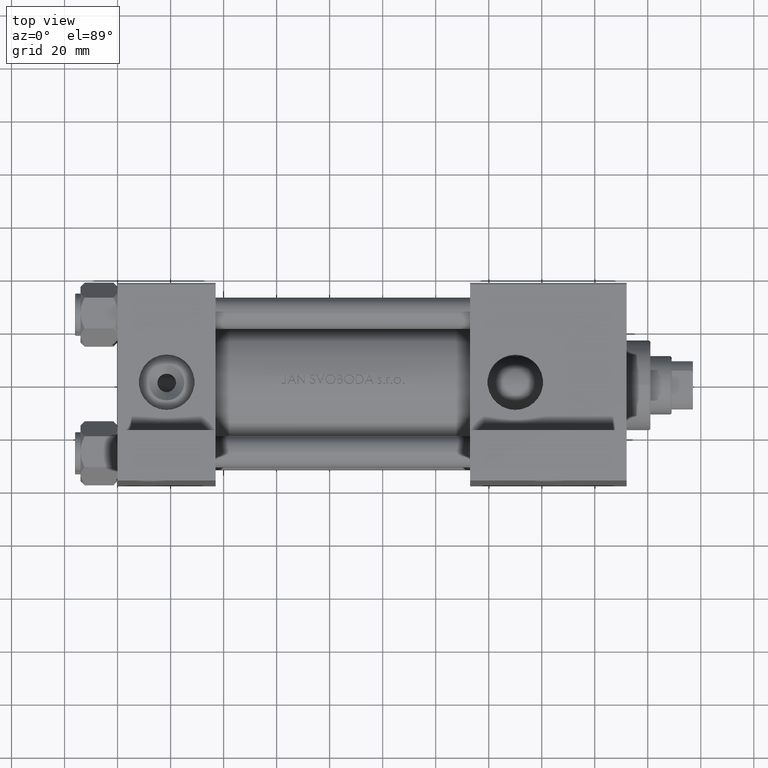
[diagram: clean part render]
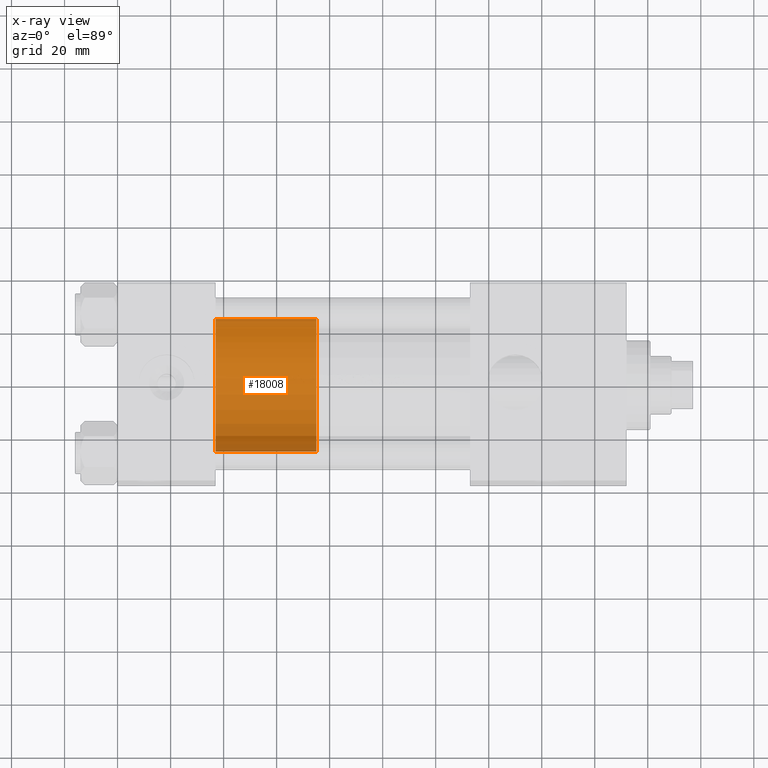
[diagram: x-ray — body ghosted, one internal face saturated and labeled with its STEP entity id]
A machine part, top view, then the same camera in x-ray: the body is ghosted and one INTERNAL B-rep face — a face not visible from any outside direction — is saturated and labeled: STEP entity #18008.
In plain terms, the highlighted cylindrical surface (partial cylindrical patch) has radius 25 mm, axis along (-1, 0, 0).
Its self-contained STEP definition (entity closure, byte-faithful):
#40 = CARTESIAN_POINT ( 'NONE',  ( 25.00000000000000000, 3.061616997868383043E-15, 38.00000000000000000 ) ) ;
#440 = FACE_OUTER_BOUND ( 'NONE', #4906, .T. ) ;
#4838 = VECTOR ( 'NONE', #30656, 1000.000000000000000 ) ;
#4906 = EDGE_LOOP ( 'NONE', ( #20125, #37985, #16422, #42308 ) ) ;
#7689 = CIRCLE ( 'NONE', #10075, 25.00000000000000000 ) ;
#7981 = VERTEX_POINT ( 'NONE', #40 ) ;
#8390 = CYLINDRICAL_SURFACE ( 'NONE', #21094, 25.00000000000000000 ) ;
#8938 = EDGE_CURVE ( 'NONE', #36890, #15365, #20773, .T. ) ;
#10075 = AXIS2_PLACEMENT_3D ( 'NONE', #15198, #22924, #33400 ) ;
#11633 = DIRECTION ( 'NONE',  ( -1.000000000000000000, 0.000000000000000000, 0.000000000000000000 ) ) ;
#11765 = VERTEX_POINT ( 'NONE', #21788 ) ;
#15198 = CARTESIAN_POINT ( 'NONE',  ( 0.000000000000000000, 0.000000000000000000, 38.00000000000000000 ) ) ;
#15365 = VERTEX_POINT ( 'NONE', #27531 ) ;
#16422 = ORIENTED_EDGE ( 'NONE', *, *, #8938, .T. ) ;
#18008 = ADVANCED_FACE ( 'NONE', ( #440 ), #8390, .T. ) ;
#19268 = DIRECTION ( 'NONE',  ( 1.000000000000000000, 0.000000000000000000, 0.000000000000000000 ) ) ;
#19675 = LINE ( 'NONE', #34395, #4838 ) ;
#20125 = ORIENTED_EDGE ( 'NONE', *, *, #30439, .F. ) ;
#20773 = CIRCLE ( 'NONE', #31900, 25.00000000000000000 ) ;
#21094 = AXIS2_PLACEMENT_3D ( 'NONE', #34806, #46017, #11633 ) ;
#21788 = CARTESIAN_POINT ( 'NONE',  ( -25.00000000000000000, 0.000000000000000000, 38.00000000000000000 ) ) ;
#22924 = DIRECTION ( 'NONE',  ( 0.000000000000000000, 0.000000000000000000, 1.000000000000000000 ) ) ;
#25431 = EDGE_CURVE ( 'NONE', #7981, #36890, #26445, .T. ) ;
#26445 = LINE ( 'NONE', #44638, #35528 ) ;
#27245 = DIRECTION ( 'NONE',  ( 0.000000000000000000, 0.000000000000000000, 1.000000000000000000 ) ) ;
#27531 = CARTESIAN_POINT ( 'NONE',  ( -25.00000000000000000, 0.000000000000000000, 0.000000000000000000 ) ) ;
#30197 = CARTESIAN_POINT ( 'NONE',  ( 25.00000000000000000, 3.061616997868383043E-15, 0.000000000000000000 ) ) ;
#30439 = EDGE_CURVE ( 'NONE', #7981, #11765, #7689, .T. ) ;
#30656 = DIRECTION ( 'NONE',  ( -0.000000000000000000, -0.000000000000000000, -1.000000000000000000 ) ) ;
#31900 = AXIS2_PLACEMENT_3D ( 'NONE', #41960, #27245, #19268 ) ;
#33400 = DIRECTION ( 'NONE',  ( 1.000000000000000000, 0.000000000000000000, 0.000000000000000000 ) ) ;
#34395 = CARTESIAN_POINT ( 'NONE',  ( -25.00000000000000000, 0.000000000000000000, 38.00000000000000000 ) ) ;
#34806 = CARTESIAN_POINT ( 'NONE',  ( 0.000000000000000000, 0.000000000000000000, 38.00000000000000000 ) ) ;
#35528 = VECTOR ( 'NONE', #41397, 1000.000000000000000 ) ;
#36890 = VERTEX_POINT ( 'NONE', #30197 ) ;
#37985 = ORIENTED_EDGE ( 'NONE', *, *, #25431, .T. ) ;
#41397 = DIRECTION ( 'NONE',  ( -0.000000000000000000, -0.000000000000000000, -1.000000000000000000 ) ) ;
#41960 = CARTESIAN_POINT ( 'NONE',  ( 0.000000000000000000, 0.000000000000000000, 0.000000000000000000 ) ) ;
#42308 = ORIENTED_EDGE ( 'NONE', *, *, #43674, .F. ) ;
#43674 = EDGE_CURVE ( 'NONE', #11765, #15365, #19675, .T. ) ;
#44638 = CARTESIAN_POINT ( 'NONE',  ( 25.00000000000000000, 3.061616997868383043E-15, 38.00000000000000000 ) ) ;
#46017 = DIRECTION ( 'NONE',  ( -0.000000000000000000, -0.000000000000000000, -1.000000000000000000 ) ) ;